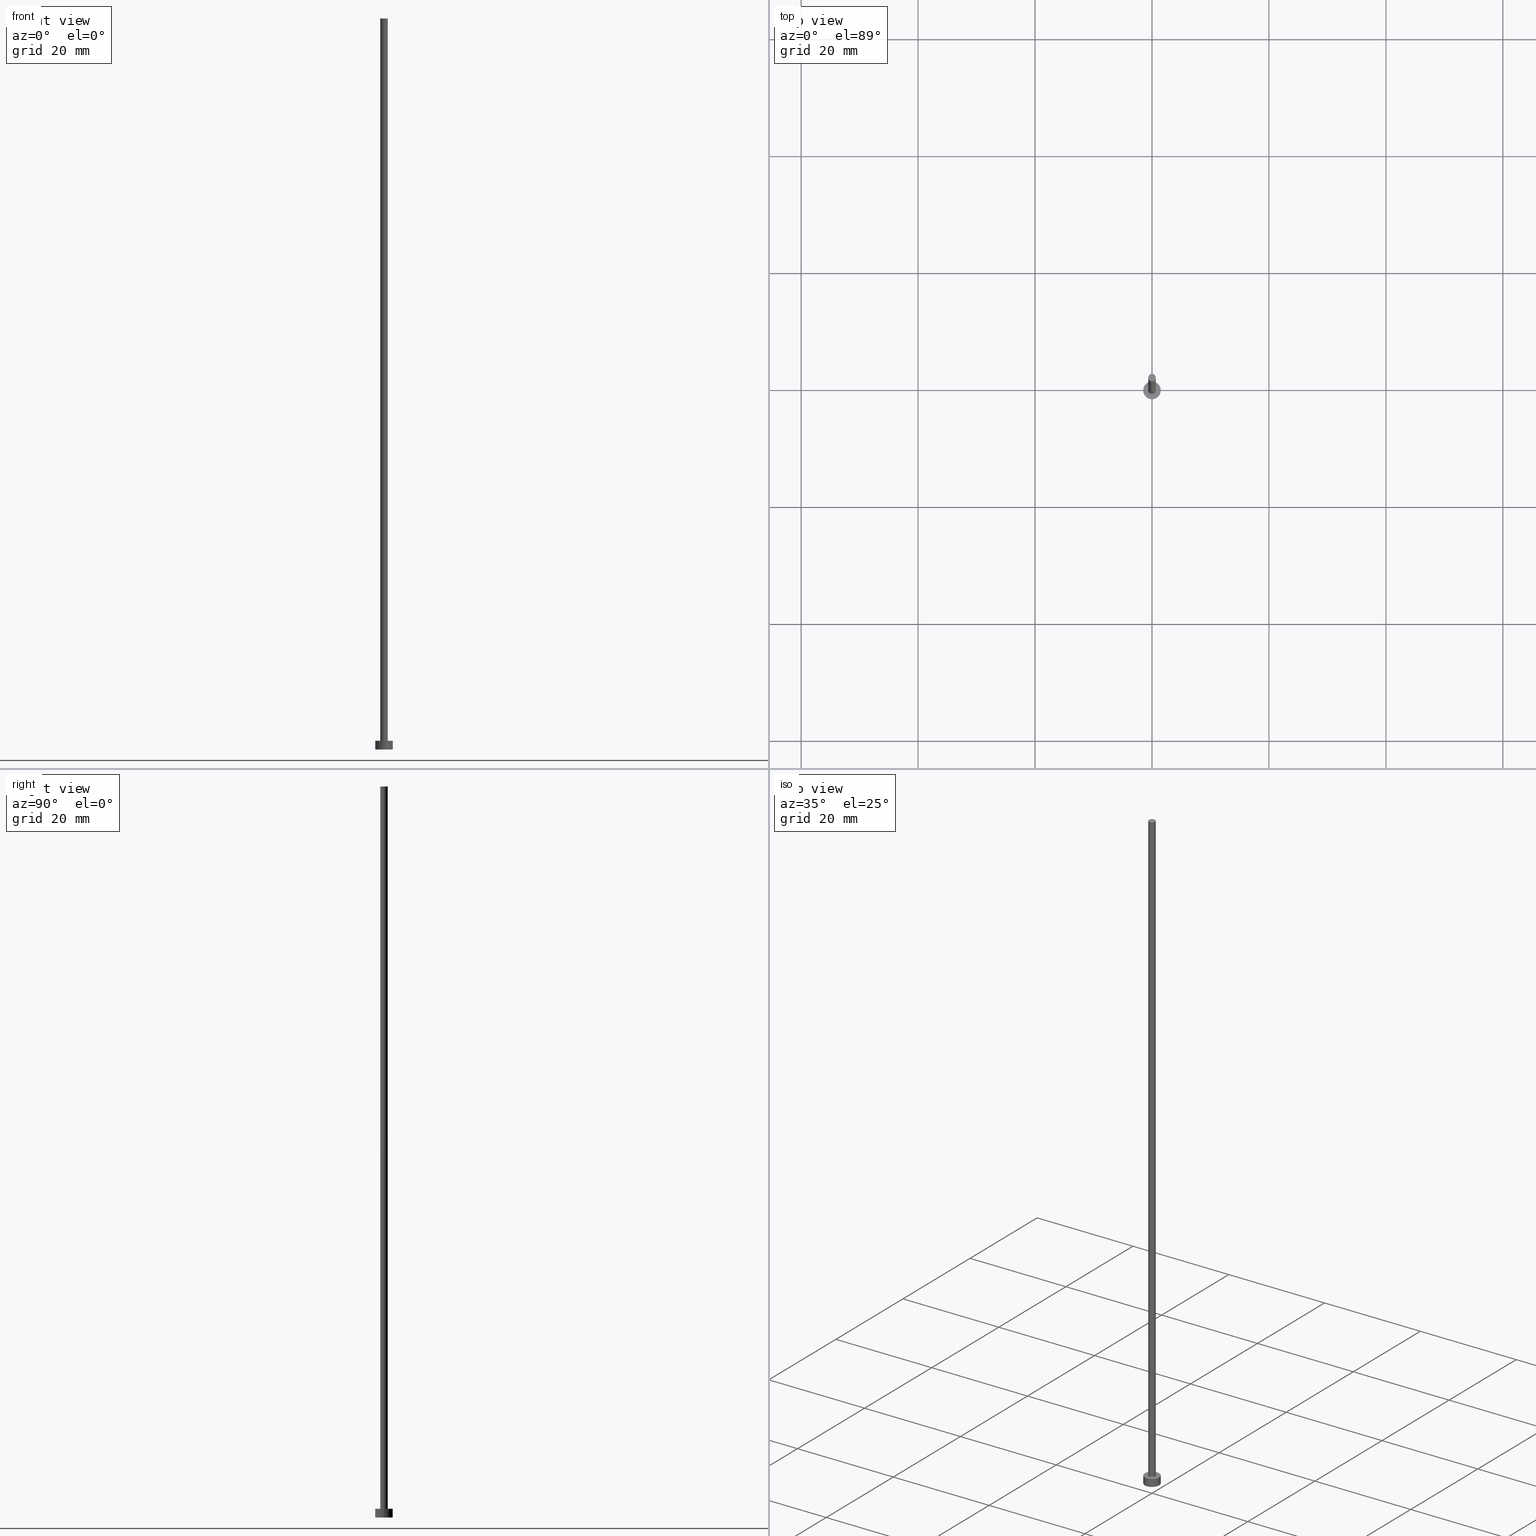
[diagram: canonical four-view strip — front | top / right | iso, engineering-drawing reading convention]
A machine part, canonical four-view strip (front | top / right | iso — engineering-drawing reading convention). The complete STEP part file that produces these views, byte-faithful:
ISO-10303-21;
HEADER;
FILE_DESCRIPTION (( 'STEP AP203' ),
    '1' );
FILE_NAME ('31eb.STEP',
    '2023-02-13T15:26:13',
    ( '' ),
    ( '' ),
    'SwSTEP 2.0',
    'SolidWorks 2019',
    '' );
FILE_SCHEMA (( 'CONFIG_CONTROL_DESIGN' ));
ENDSEC;

DATA;
#1 = CARTESIAN_POINT ( 'NONE',  ( -0.6500000000000000222, 0.000000000000000000, 125.0000000000000000 ) ) ;
#2 = AXIS2_PLACEMENT_3D ( 'NONE', #108, #27, #170 ) ;
#3 = DIRECTION ( 'NONE',  ( -0.000000000000000000, -0.000000000000000000, -1.000000000000000000 ) ) ;
#4 = APPROVAL ( #59, 'NEUR�EN�' ) ;
#5 = ORIENTED_EDGE ( 'NONE', *, *, #244, .T. ) ;
#6 = PERSON_AND_ORGANIZATION ( #181, #73 ) ;
#7 = DIRECTION ( 'NONE',  ( 1.000000000000000000, 0.000000000000000000, -0.000000000000000000 ) ) ;
#8 = DATE_AND_TIME ( #191, #218 ) ;
#9 = AXIS2_PLACEMENT_3D ( 'NONE', #169, #3, #221 ) ;
#10 = CARTESIAN_POINT ( 'NONE',  ( 0.000000000000000000, 0.000000000000000000, 1.500000000000000000 ) ) ;
#11 = CC_DESIGN_PERSON_AND_ORGANIZATION_ASSIGNMENT ( #205, #235, ( #234 ) ) ;
#12 = APPROVAL_DATE_TIME ( #196, #117 ) ;
#13 = CALENDAR_DATE ( 2023, 13, 2 ) ;
#14 = ORIENTED_EDGE ( 'NONE', *, *, #102, .T. ) ;
#15 = CC_DESIGN_APPROVAL ( #110, ( #135 ) ) ;
#16 = EDGE_CURVE ( 'NONE', #92, #123, #187, .T. ) ;
#17 = ORIENTED_EDGE ( 'NONE', *, *, #146, .F. ) ;
#18 = AXIS2_PLACEMENT_3D ( 'NONE', #224, #120, #207 ) ;
#19 = CARTESIAN_POINT ( 'NONE',  ( -0.6500000000000000222, 0.000000000000000000, 125.0000000000000000 ) ) ;
#20 = CARTESIAN_POINT ( 'NONE',  ( 0.000000000000000000, 0.000000000000000000, 1.500000000000000000 ) ) ;
#21 = ORIENTED_EDGE ( 'NONE', *, *, #250, .T. ) ;
#22 = DIRECTION ( 'NONE',  ( -0.000000000000000000, -0.000000000000000000, -1.000000000000000000 ) ) ;
#23 = CC_DESIGN_APPROVAL ( #117, ( #116 ) ) ;
#24 = CARTESIAN_POINT ( 'NONE',  ( 0.000000000000000000, 0.000000000000000000, 1.500000000000000000 ) ) ;
#25 = EDGE_LOOP ( 'NONE', ( #32, #98 ) ) ;
#26 = CALENDAR_DATE ( 2023, 13, 2 ) ;
#27 = DIRECTION ( 'NONE',  ( 0.000000000000000000, 0.000000000000000000, 1.000000000000000000 ) ) ;
#28 = DIRECTION ( 'NONE',  ( 1.000000000000000000, 0.000000000000000000, 0.000000000000000000 ) ) ;
#29 = PRODUCT_RELATED_PRODUCT_CATEGORY ( 'detail', '', ( #234 ) ) ;
#30 = DIRECTION ( 'NONE',  ( -0.000000000000000000, -0.000000000000000000, -1.000000000000000000 ) ) ;
#31 = MANIFOLD_SOLID_BREP ( 'P�idat vysunut�m3', #80 ) ;
#32 = ORIENTED_EDGE ( 'NONE', *, *, #161, .T. ) ;
#33 = DATE_AND_TIME ( #151, #163 ) ;
#34 = EDGE_LOOP ( 'NONE', ( #17, #64, #232, #193 ) ) ;
#35 = DATE_TIME_ROLE ( 'classification_date' ) ;
#36 = LOCAL_TIME ( 16, 26, 13.00000000000000000, #39 ) ;
#37 = PERSON_AND_ORGANIZATION_ROLE ( 'classification_officer' ) ;
#38 = CIRCLE ( 'NONE', #85, 0.6500000000000000222 ) ;
#39 = COORDINATED_UNIVERSAL_TIME_OFFSET ( 1, 0, .AHEAD. ) ;
#40 = CC_DESIGN_DATE_AND_TIME_ASSIGNMENT ( #216, #35, ( #116 ) ) ;
#41 = FACE_OUTER_BOUND ( 'NONE', #34, .T. ) ;
#42 = AXIS2_PLACEMENT_3D ( 'NONE', #251, #231, #55 ) ;
#43 = PERSON_AND_ORGANIZATION_ROLE ( 'creator' ) ;
#44 = APPROVAL_STATUS ( 'not_yet_approved' ) ;
#45 = VERTEX_POINT ( 'NONE', #143 ) ;
#46 = CC_DESIGN_PERSON_AND_ORGANIZATION_ASSIGNMENT ( #242, #122, ( #228 ) ) ;
#47 = AXIS2_PLACEMENT_3D ( 'NONE', #154, #57, #7 ) ;
#48 = DIRECTION ( 'NONE',  ( -1.000000000000000000, 0.000000000000000000, 0.000000000000000000 ) ) ;
#49 = SHAPE_DEFINITION_REPRESENTATION ( #199, #103 ) ;
#50 = EDGE_LOOP ( 'NONE', ( #230, #227 ) ) ;
#51 = CYLINDRICAL_SURFACE ( 'NONE', #94, 1.500000000000000222 ) ;
#52 = CARTESIAN_POINT ( 'NONE',  ( -0.6500000000000000222, 0.000000000000000000, 1.500000000000000000 ) ) ;
#53 = ORIENTED_EDGE ( 'NONE', *, *, #161, .F. ) ;
#54 = VECTOR ( 'NONE', #30, 1000.000000000000000 ) ;
#55 = DIRECTION ( 'NONE',  ( 1.000000000000000000, 0.000000000000000000, 0.000000000000000000 ) ) ;
#56 = DIRECTION ( 'NONE',  ( 1.000000000000000000, 0.000000000000000000, -0.000000000000000000 ) ) ;
#57 = DIRECTION ( 'NONE',  ( 0.000000000000000000, 0.000000000000000000, 1.000000000000000000 ) ) ;
#58 = PERSON_AND_ORGANIZATION ( #181, #73 ) ;
#59 = APPROVAL_STATUS ( 'not_yet_approved' ) ;
#60 = LOCAL_TIME ( 16, 26, 13.00000000000000000, #109 ) ;
#61 = DIRECTION ( 'NONE',  ( 1.000000000000000000, 0.000000000000000000, 0.000000000000000000 ) ) ;
#62 = DIRECTION ( 'NONE',  ( 1.000000000000000000, 0.000000000000000000, 0.000000000000000000 ) ) ;
#63 = ORIENTED_EDGE ( 'NONE', *, *, #131, .T. ) ;
#64 = ORIENTED_EDGE ( 'NONE', *, *, #217, .T. ) ;
#65 = DIRECTION ( 'NONE',  ( 0.000000000000000000, 0.000000000000000000, 1.000000000000000000 ) ) ;
#66 = VERTEX_POINT ( 'NONE', #91 ) ;
#67 = CIRCLE ( 'NONE', #2, 0.6500000000000000222 ) ;
#68 = DIRECTION ( 'NONE',  ( 1.000000000000000000, 0.000000000000000000, 0.000000000000000000 ) ) ;
#69 = APPLICATION_CONTEXT ( 'configuration controlled 3d designs of mechanical parts and assemblies' ) ;
#70 = EDGE_CURVE ( 'NONE', #162, #77, #171, .T. ) ;
#71 = CIRCLE ( 'NONE', #133, 1.500000000000000222 ) ;
#72 = MECHANICAL_CONTEXT ( 'NONE', #69, 'mechanical' ) ;
#73 = ORGANIZATION ( 'NEUR�EN�', 'NEUR�EN�', '' ) ;
#74 = LINE ( 'NONE', #245, #164 ) ;
#75 = APPLICATION_CONTEXT ( 'configuration controlled 3d designs of mechanical parts and assemblies' ) ;
#76 = DIRECTION ( 'NONE',  ( -1.000000000000000000, 0.000000000000000000, 0.000000000000000000 ) ) ;
#77 = VERTEX_POINT ( 'NONE', #141 ) ;
#78 = FACE_OUTER_BOUND ( 'NONE', #144, .T. ) ;
#79 = CARTESIAN_POINT ( 'NONE',  ( 0.000000000000000000, 0.000000000000000000, 125.0000000000000000 ) ) ;
#80 = CLOSED_SHELL ( 'NONE', ( #184, #96, #168, #137, #255, #93, #236 ) ) ;
#81 = DATE_TIME_ROLE ( 'creation_date' ) ;
#82 = APPROVAL_DATE_TIME ( #190, #110 ) ;
#83 = DIRECTION ( 'NONE',  ( 0.000000000000000000, 0.000000000000000000, 1.000000000000000000 ) ) ;
#84 = ORIENTED_EDGE ( 'NONE', *, *, #217, .F. ) ;
#85 = AXIS2_PLACEMENT_3D ( 'NONE', #148, #241, #249 ) ;
#86 = LINE ( 'NONE', #253, #54 ) ;
#87 = AXIS2_PLACEMENT_3D ( 'NONE', #118, #167, #204 ) ;
#88 = CARTESIAN_POINT ( 'NONE',  ( 0.000000000000000000, 0.000000000000000000, 0.000000000000000000 ) ) ;
#89 = APPLICATION_PROTOCOL_DEFINITION ( 'international standard', 'config_control_design', 1994, #69 ) ;
#90 = APPROVAL_PERSON_ORGANIZATION ( #58, #110, #247 ) ;
#91 = CARTESIAN_POINT ( 'NONE',  ( 1.500000000000000222, 1.836970198721030181E-16, 1.500000000000000000 ) ) ;
#92 = VERTEX_POINT ( 'NONE', #188 ) ;
#93 = ADVANCED_FACE ( 'NONE', ( #78 ), #186, .T. ) ;
#94 = AXIS2_PLACEMENT_3D ( 'NONE', #20, #22, #76 ) ;
#95 = CARTESIAN_POINT ( 'NONE',  ( -1.500000000000000222, 0.000000000000000000, 1.500000000000000000 ) ) ;
#96 = ADVANCED_FACE ( 'NONE', ( #41 ), #248, .T. ) ;
#97 = VECTOR ( 'NONE', #100, 1000.000000000000000 ) ;
#98 = ORIENTED_EDGE ( 'NONE', *, *, #146, .T. ) ;
#99 = CARTESIAN_POINT ( 'NONE',  ( -1.500000000000000222, 0.000000000000000000, 1.500000000000000000 ) ) ;
#100 = DIRECTION ( 'NONE',  ( -0.000000000000000000, -0.000000000000000000, -1.000000000000000000 ) ) ;
#101 = CARTESIAN_POINT ( 'NONE',  ( 0.000000000000000000, 0.000000000000000000, 0.000000000000000000 ) ) ;
#102 = EDGE_CURVE ( 'NONE', #212, #123, #147, .T. ) ;
#103 = ADVANCED_BREP_SHAPE_REPRESENTATION ( '31eb', ( #31, #237 ), #139 ) ;
#104 = CARTESIAN_POINT ( 'NONE',  ( 0.000000000000000000, 0.000000000000000000, 1.500000000000000000 ) ) ;
#105 = CIRCLE ( 'NONE', #142, 1.500000000000000222 ) ;
#106 = PERSON_AND_ORGANIZATION ( #181, #73 ) ;
#107 = EDGE_CURVE ( 'NONE', #45, #212, #157, .T. ) ;
#108 = CARTESIAN_POINT ( 'NONE',  ( 0.000000000000000000, 0.000000000000000000, 1.500000000000000000 ) ) ;
#109 = COORDINATED_UNIVERSAL_TIME_OFFSET ( 1, 0, .AHEAD. ) ;
#110 = APPROVAL ( #208, 'NEUR�EN�' ) ;
#111 = DIRECTION ( 'NONE',  ( 1.000000000000000000, 0.000000000000000000, 0.000000000000000000 ) ) ;
#112 = APPROVAL_PERSON_ORGANIZATION ( #233, #4, #200 ) ;
#113 = EDGE_LOOP ( 'NONE', ( #84, #53, #222, #63 ) ) ;
#114 = CC_DESIGN_PERSON_AND_ORGANIZATION_ASSIGNMENT ( #160, #37, ( #116 ) ) ;
#115 = CC_DESIGN_DATE_AND_TIME_ASSIGNMENT ( #8, #81, ( #135 ) ) ;
#116 = SECURITY_CLASSIFICATION ( '', '', #220 ) ;
#117 = APPROVAL ( #44, 'NEUR�EN�' ) ;
#118 = CARTESIAN_POINT ( 'NONE',  ( 0.000000000000000000, 0.000000000000000000, 1.500000000000000000 ) ) ;
#119 = APPROVAL_ROLE ( '' ) ;
#120 = DIRECTION ( 'NONE',  ( 0.000000000000000000, 0.000000000000000000, 1.000000000000000000 ) ) ;
#121 = CARTESIAN_POINT ( 'NONE',  ( 1.500000000000000222, 1.836970198721030181E-16, 0.000000000000000000 ) ) ;
#122 = PERSON_AND_ORGANIZATION_ROLE ( 'design_supplier' ) ;
#123 = VERTEX_POINT ( 'NONE', #52 ) ;
#124 = CC_DESIGN_APPROVAL ( #4, ( #228 ) ) ;
#125 = PLANE ( 'NONE',  #156 ) ;
#126 = AXIS2_PLACEMENT_3D ( 'NONE', #101, #238, #62 ) ;
#127 = ORIENTED_EDGE ( 'NONE', *, *, #175, .F. ) ;
#128 = COORDINATED_UNIVERSAL_TIME_OFFSET ( 1, 0, .AHEAD. ) ;
#129 = CYLINDRICAL_SURFACE ( 'NONE', #215, 0.6500000000000000222 ) ;
#130 = PLANE ( 'NONE',  #243 ) ;
#131 = EDGE_CURVE ( 'NONE', #77, #162, #105, .T. ) ;
#132 = FACE_OUTER_BOUND ( 'NONE', #158, .T. ) ;
#133 = AXIS2_PLACEMENT_3D ( 'NONE', #10, #83, #68 ) ;
#134 = FACE_OUTER_BOUND ( 'NONE', #25, .T. ) ;
#135 = PRODUCT_DEFINITION ( 'NEZN�M�', '', #228, #225 ) ;
#136 = CC_DESIGN_SECURITY_CLASSIFICATION ( #116, ( #228 ) ) ;
#137 = ADVANCED_FACE ( 'NONE', ( #226, #134 ), #130, .T. ) ;
#138 =( NAMED_UNIT ( * ) PLANE_ANGLE_UNIT ( ) SI_UNIT ( $, .RADIAN. ) );
#139 =( GEOMETRIC_REPRESENTATION_CONTEXT ( 3 ) GLOBAL_UNCERTAINTY_ASSIGNED_CONTEXT ( ( #180 ) ) GLOBAL_UNIT_ASSIGNED_CONTEXT ( ( #210, #138, #254 ) ) REPRESENTATION_CONTEXT ( 'NONE', 'WORKASPACE' ) );
#140 = CC_DESIGN_PERSON_AND_ORGANIZATION_ASSIGNMENT ( #6, #173, ( #135 ) ) ;
#141 = CARTESIAN_POINT ( 'NONE',  ( -1.500000000000000222, 0.000000000000000000, 0.000000000000000000 ) ) ;
#142 = AXIS2_PLACEMENT_3D ( 'NONE', #150, #213, #111 ) ;
#143 = CARTESIAN_POINT ( 'NONE',  ( 0.6500000000000000222, 7.960204194457795477E-17, 125.0000000000000000 ) ) ;
#144 = EDGE_LOOP ( 'NONE', ( #176, #127, #14, #21 ) ) ;
#145 = FACE_OUTER_BOUND ( 'NONE', #197, .T. ) ;
#146 = EDGE_CURVE ( 'NONE', #66, #214, #71, .T. ) ;
#147 = LINE ( 'NONE', #19, #97 ) ;
#148 = CARTESIAN_POINT ( 'NONE',  ( 0.000000000000000000, 0.000000000000000000, 125.0000000000000000 ) ) ;
#149 = ORIENTED_EDGE ( 'NONE', *, *, #107, .T. ) ;
#150 = CARTESIAN_POINT ( 'NONE',  ( 0.000000000000000000, 0.000000000000000000, 0.000000000000000000 ) ) ;
#151 = CALENDAR_DATE ( 2023, 13, 2 ) ;
#152 = AXIS2_PLACEMENT_3D ( 'NONE', #24, #65, #28 ) ;
#153 = LINE ( 'NONE', #95, #166 ) ;
#154 = CARTESIAN_POINT ( 'NONE',  ( 0.000000000000000000, 0.000000000000000000, 0.000000000000000000 ) ) ;
#155 = EDGE_LOOP ( 'NONE', ( #239, #5, #195, #240 ) ) ;
#156 = AXIS2_PLACEMENT_3D ( 'NONE', #206, #223, #56 ) ;
#157 = CIRCLE ( 'NONE', #42, 0.6500000000000000222 ) ;
#158 = EDGE_LOOP ( 'NONE', ( #198, #219 ) ) ;
#159 = EDGE_CURVE ( 'NONE', #214, #77, #153, .T. ) ;
#160 = PERSON_AND_ORGANIZATION ( #181, #73 ) ;
#161 = EDGE_CURVE ( 'NONE', #214, #66, #229, .T. ) ;
#162 = VERTEX_POINT ( 'NONE', #121 ) ;
#163 = LOCAL_TIME ( 16, 26, 13.00000000000000000, #201 ) ;
#164 = VECTOR ( 'NONE', #165, 1000.000000000000000 ) ;
#165 = DIRECTION ( 'NONE',  ( -0.000000000000000000, -0.000000000000000000, -1.000000000000000000 ) ) ;
#166 = VECTOR ( 'NONE', #189, 1000.000000000000000 ) ;
#167 = DIRECTION ( 'NONE',  ( -0.000000000000000000, -0.000000000000000000, -1.000000000000000000 ) ) ;
#168 = ADVANCED_FACE ( 'NONE', ( #246 ), #51, .T. ) ;
#169 = CARTESIAN_POINT ( 'NONE',  ( 0.000000000000000000, 0.000000000000000000, 125.0000000000000000 ) ) ;
#170 = DIRECTION ( 'NONE',  ( 1.000000000000000000, 0.000000000000000000, 0.000000000000000000 ) ) ;
#171 = CIRCLE ( 'NONE', #126, 1.500000000000000222 ) ;
#172 = DIRECTION ( 'NONE',  ( -0.000000000000000000, -0.000000000000000000, -1.000000000000000000 ) ) ;
#173 = PERSON_AND_ORGANIZATION_ROLE ( 'creator' ) ;
#174 = PLANE ( 'NONE',  #47 ) ;
#175 = EDGE_CURVE ( 'NONE', #212, #45, #38, .T. ) ;
#176 = ORIENTED_EDGE ( 'NONE', *, *, #244, .F. ) ;
#177 = PERSON_AND_ORGANIZATION ( #181, #73 ) ;
#178 = DIRECTION ( 'NONE',  ( 0.000000000000000000, 0.000000000000000000, 1.000000000000000000 ) ) ;
#179 = APPLICATION_PROTOCOL_DEFINITION ( 'international standard', 'config_control_design', 1994, #75 ) ;
#180 = UNCERTAINTY_MEASURE_WITH_UNIT (LENGTH_MEASURE( 1.000000000000000082E-05 ), #210, 'distance_accuracy_value', 'NONE');
#181 = PERSON ( 'NEUR�EN�', 'NEUR�EN�', 'NEUR�EN�', ('NEUR�EN�'), ('NEUR�EN�'), ('NEUR�EN�') ) ;
#182 = CC_DESIGN_PERSON_AND_ORGANIZATION_ASSIGNMENT ( #106, #43, ( #228 ) ) ;
#183 = FACE_OUTER_BOUND ( 'NONE', #155, .T. ) ;
#184 = ADVANCED_FACE ( 'NONE', ( #183 ), #129, .T. ) ;
#185 = APPROVAL_PERSON_ORGANIZATION ( #177, #117, #119 ) ;
#186 = CYLINDRICAL_SURFACE ( 'NONE', #9, 0.6500000000000000222 ) ;
#187 = CIRCLE ( 'NONE', #18, 0.6500000000000000222 ) ;
#188 = CARTESIAN_POINT ( 'NONE',  ( 0.6500000000000000222, 7.960204194457795477E-17, 1.500000000000000000 ) ) ;
#189 = DIRECTION ( 'NONE',  ( -0.000000000000000000, -0.000000000000000000, -1.000000000000000000 ) ) ;
#190 = DATE_AND_TIME ( #26, #202 ) ;
#191 = CALENDAR_DATE ( 2023, 13, 2 ) ;
#192 = DIRECTION ( 'NONE',  ( 0.000000000000000000, 0.000000000000000000, 1.000000000000000000 ) ) ;
#193 = ORIENTED_EDGE ( 'NONE', *, *, #159, .F. ) ;
#194 = DIRECTION ( 'NONE',  ( 1.000000000000000000, 0.000000000000000000, -0.000000000000000000 ) ) ;
#195 = ORIENTED_EDGE ( 'NONE', *, *, #16, .T. ) ;
#196 = DATE_AND_TIME ( #252, #60 ) ;
#197 = EDGE_LOOP ( 'NONE', ( #203, #149 ) ) ;
#198 = ORIENTED_EDGE ( 'NONE', *, *, #131, .F. ) ;
#199 = PRODUCT_DEFINITION_SHAPE ( 'NONE', 'NONE',  #135 ) ;
#200 = APPROVAL_ROLE ( '' ) ;
#201 = COORDINATED_UNIVERSAL_TIME_OFFSET ( 1, 0, .AHEAD. ) ;
#202 = LOCAL_TIME ( 16, 26, 13.00000000000000000, #128 ) ;
#203 = ORIENTED_EDGE ( 'NONE', *, *, #175, .T. ) ;
#204 = DIRECTION ( 'NONE',  ( -1.000000000000000000, 0.000000000000000000, 0.000000000000000000 ) ) ;
#205 = PERSON_AND_ORGANIZATION ( #181, #73 ) ;
#206 = CARTESIAN_POINT ( 'NONE',  ( 0.000000000000000000, 0.000000000000000000, 125.0000000000000000 ) ) ;
#207 = DIRECTION ( 'NONE',  ( 1.000000000000000000, 0.000000000000000000, 0.000000000000000000 ) ) ;
#208 = APPROVAL_STATUS ( 'not_yet_approved' ) ;
#209 = COORDINATED_UNIVERSAL_TIME_OFFSET ( 1, 0, .AHEAD. ) ;
#210 =( LENGTH_UNIT ( ) NAMED_UNIT ( * ) SI_UNIT ( .MILLI., .METRE. ) );
#211 = APPROVAL_DATE_TIME ( #33, #4 ) ;
#212 = VERTEX_POINT ( 'NONE', #1 ) ;
#213 = DIRECTION ( 'NONE',  ( 0.000000000000000000, 0.000000000000000000, 1.000000000000000000 ) ) ;
#214 = VERTEX_POINT ( 'NONE', #99 ) ;
#215 = AXIS2_PLACEMENT_3D ( 'NONE', #79, #172, #48 ) ;
#216 = DATE_AND_TIME ( #13, #36 ) ;
#217 = EDGE_CURVE ( 'NONE', #66, #162, #74, .T. ) ;
#218 = LOCAL_TIME ( 16, 26, 13.00000000000000000, #209 ) ;
#219 = ORIENTED_EDGE ( 'NONE', *, *, #70, .F. ) ;
#220 = SECURITY_CLASSIFICATION_LEVEL ( 'unclassified' ) ;
#221 = DIRECTION ( 'NONE',  ( -1.000000000000000000, 0.000000000000000000, 0.000000000000000000 ) ) ;
#222 = ORIENTED_EDGE ( 'NONE', *, *, #159, .T. ) ;
#223 = DIRECTION ( 'NONE',  ( 0.000000000000000000, 0.000000000000000000, 1.000000000000000000 ) ) ;
#224 = CARTESIAN_POINT ( 'NONE',  ( 0.000000000000000000, 0.000000000000000000, 1.500000000000000000 ) ) ;
#225 = DESIGN_CONTEXT ( 'detailed design', #75, 'design' ) ;
#226 = FACE_BOUND ( 'NONE', #50, .T. ) ;
#227 = ORIENTED_EDGE ( 'NONE', *, *, #16, .F. ) ;
#228 = PRODUCT_DEFINITION_FORMATION_WITH_SPECIFIED_SOURCE ( 'LIBOVOLN�', '', #234, .NOT_KNOWN. ) ;
#229 = CIRCLE ( 'NONE', #152, 1.500000000000000222 ) ;
#230 = ORIENTED_EDGE ( 'NONE', *, *, #250, .F. ) ;
#231 = DIRECTION ( 'NONE',  ( 0.000000000000000000, 0.000000000000000000, 1.000000000000000000 ) ) ;
#232 = ORIENTED_EDGE ( 'NONE', *, *, #70, .T. ) ;
#233 = PERSON_AND_ORGANIZATION ( #181, #73 ) ;
#234 = PRODUCT ( '31eb', '31eb', '', ( #72 ) ) ;
#235 = PERSON_AND_ORGANIZATION_ROLE ( 'design_owner' ) ;
#236 = ADVANCED_FACE ( 'NONE', ( #145 ), #125, .T. ) ;
#237 = AXIS2_PLACEMENT_3D ( 'NONE', #88, #178, #61 ) ;
#238 = DIRECTION ( 'NONE',  ( 0.000000000000000000, 0.000000000000000000, 1.000000000000000000 ) ) ;
#239 = ORIENTED_EDGE ( 'NONE', *, *, #107, .F. ) ;
#240 = ORIENTED_EDGE ( 'NONE', *, *, #102, .F. ) ;
#241 = DIRECTION ( 'NONE',  ( 0.000000000000000000, 0.000000000000000000, 1.000000000000000000 ) ) ;
#242 = PERSON_AND_ORGANIZATION ( #181, #73 ) ;
#243 = AXIS2_PLACEMENT_3D ( 'NONE', #104, #192, #194 ) ;
#244 = EDGE_CURVE ( 'NONE', #45, #92, #86, .T. ) ;
#245 = CARTESIAN_POINT ( 'NONE',  ( 1.500000000000000222, 1.836970198721030181E-16, 1.500000000000000000 ) ) ;
#246 = FACE_OUTER_BOUND ( 'NONE', #113, .T. ) ;
#247 = APPROVAL_ROLE ( '' ) ;
#248 = CYLINDRICAL_SURFACE ( 'NONE', #87, 1.500000000000000222 ) ;
#249 = DIRECTION ( 'NONE',  ( 1.000000000000000000, 0.000000000000000000, 0.000000000000000000 ) ) ;
#250 = EDGE_CURVE ( 'NONE', #123, #92, #67, .T. ) ;
#251 = CARTESIAN_POINT ( 'NONE',  ( 0.000000000000000000, 0.000000000000000000, 125.0000000000000000 ) ) ;
#252 = CALENDAR_DATE ( 2023, 13, 2 ) ;
#253 = CARTESIAN_POINT ( 'NONE',  ( 0.6500000000000000222, 7.960204194457795477E-17, 125.0000000000000000 ) ) ;
#254 =( NAMED_UNIT ( * ) SI_UNIT ( $, .STERADIAN. ) SOLID_ANGLE_UNIT ( ) );
#255 = ADVANCED_FACE ( 'NONE', ( #132 ), #174, .F. ) ;
ENDSEC;
END-ISO-10303-21;
